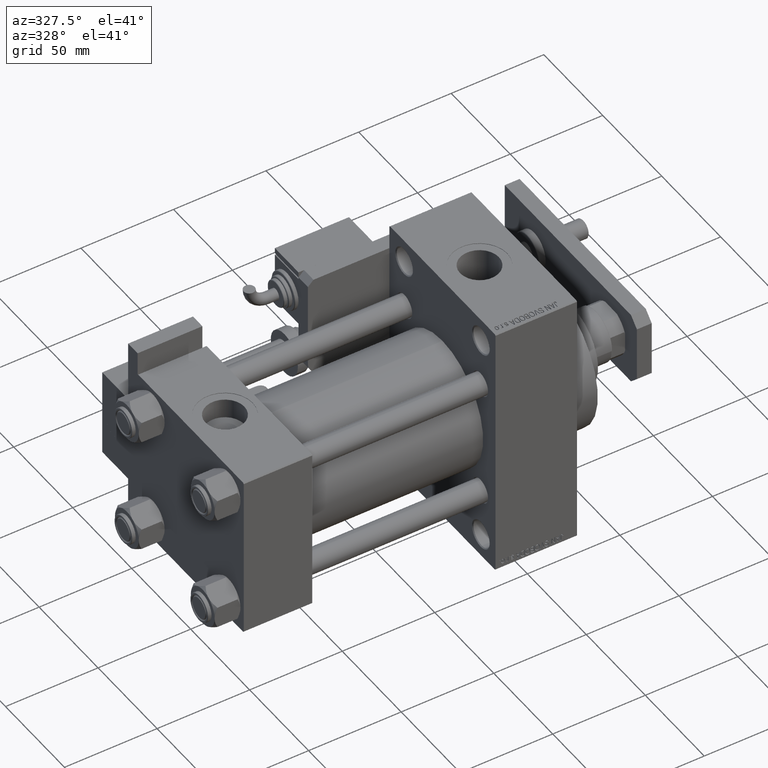
[diagram: clean part render]
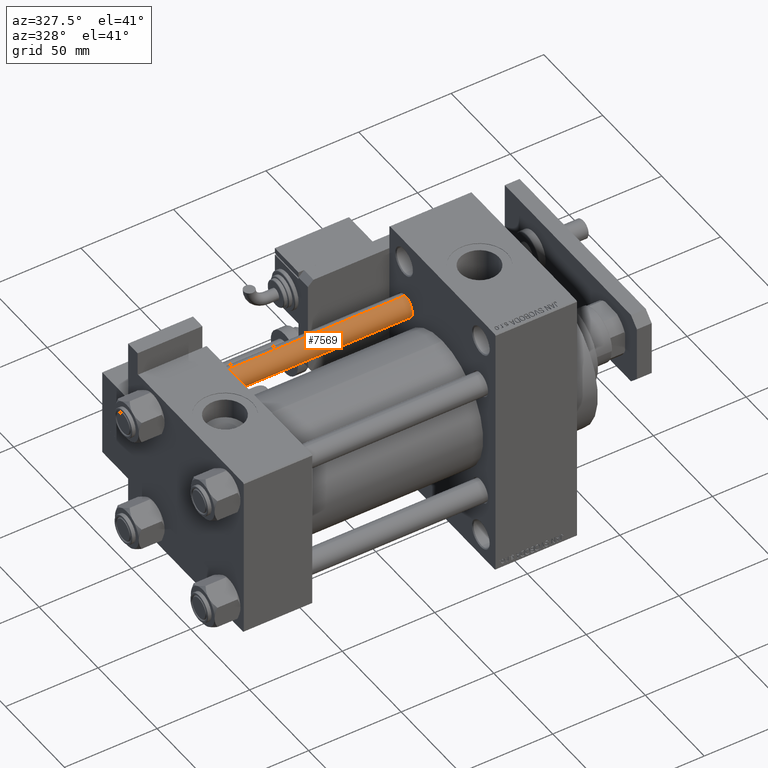
[diagram: same view with one face highlighted and labeled with its STEP entity id]
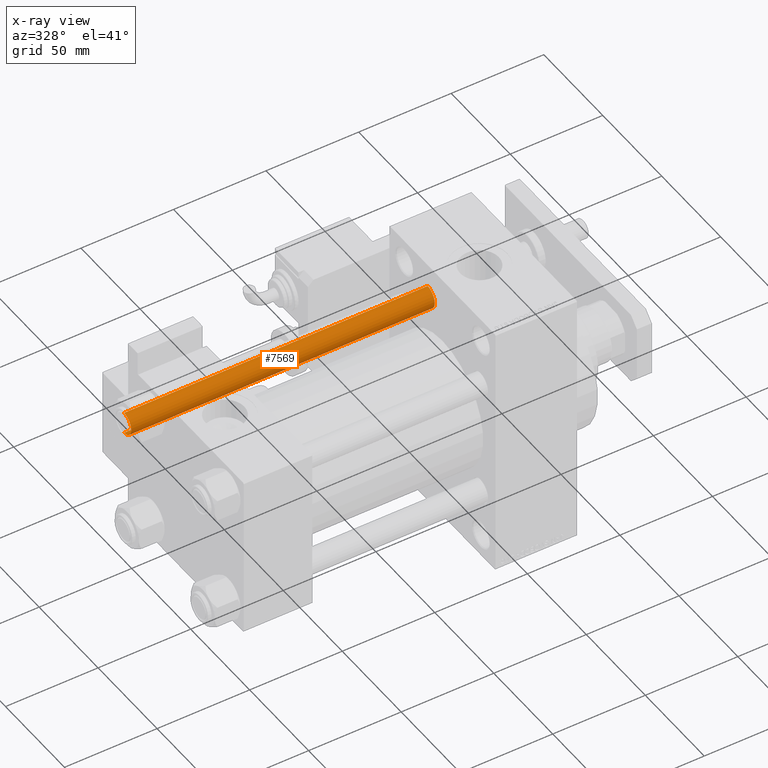
[diagram: x-ray of the same camera — body ghosted, the highlighted face saturated]
A machine part, auxiliary view. The second image highlights one B-rep face of the part: STEP entity #7569.
The next image is the same camera in x-ray: the body ghosted, the highlighted face saturated — about 0% of this face is hidden behind the body in this view.
In plain terms, the highlighted cylindrical surface (edge-blend (fillet) strip) has radius 6 mm, axis along (1, -0, -0).
Its self-contained STEP definition (entity closure, byte-faithful):
#234 = CIRCLE ( 'NONE', #31309, 6.000000000000000888 ) ;
#334 = DIRECTION ( 'NONE',  ( -0.000000000000000000, -0.000000000000000000, -1.000000000000000000 ) ) ;
#1014 = DIRECTION ( 'NONE',  ( 1.000000000000000000, 0.000000000000000000, 0.000000000000000000 ) ) ;
#2038 = ORIENTED_EDGE ( 'NONE', *, *, #25043, .T. ) ;
#2700 = CARTESIAN_POINT ( 'NONE',  ( -6.000000000000000888, 0.000000000000000000, 164.5000000000000000 ) ) ;
#5316 = DIRECTION ( 'NONE',  ( -1.000000000000000000, 0.000000000000000000, 0.000000000000000000 ) ) ;
#6357 = CARTESIAN_POINT ( 'NONE',  ( 0.000000000000000000, 0.000000000000000000, 0.5000000000000281997 ) ) ;
#6943 = ORIENTED_EDGE ( 'NONE', *, *, #15420, .T. ) ;
#7569 = ADVANCED_FACE ( 'NONE', ( #8675 ), #25644, .T. ) ;
#8675 = FACE_OUTER_BOUND ( 'NONE', #44859, .T. ) ;
#9231 = CARTESIAN_POINT ( 'NONE',  ( 0.000000000000000000, 0.000000000000000000, 165.0000000000000000 ) ) ;
#11831 = CARTESIAN_POINT ( 'NONE',  ( 6.000000000000000888, 7.347880794884120722E-16, 165.0000000000000000 ) ) ;
#13182 = LINE ( 'NONE', #54903, #44322 ) ;
#13311 = VECTOR ( 'NONE', #50479, 1000.000000000000000 ) ;
#15420 = EDGE_CURVE ( 'NONE', #18277, #52238, #50327, .T. ) ;
#18277 = VERTEX_POINT ( 'NONE', #45604 ) ;
#18623 = DIRECTION ( 'NONE',  ( -0.000000000000000000, -0.000000000000000000, 1.000000000000000000 ) ) ;
#19235 = VERTEX_POINT ( 'NONE', #2700 ) ;
#19619 = ORIENTED_EDGE ( 'NONE', *, *, #42178, .F. ) ;
#22805 = DIRECTION ( 'NONE',  ( 1.000000000000000000, 0.000000000000000000, 0.000000000000000000 ) ) ;
#23598 = AXIS2_PLACEMENT_3D ( 'NONE', #9231, #334, #5316 ) ;
#25043 = EDGE_CURVE ( 'NONE', #19235, #18277, #13182, .T. ) ;
#25644 = CYLINDRICAL_SURFACE ( 'NONE', #23598, 6.000000000000000888 ) ;
#28222 = ORIENTED_EDGE ( 'NONE', *, *, #47216, .T. ) ;
#29609 = LINE ( 'NONE', #11831, #13311 ) ;
#31309 = AXIS2_PLACEMENT_3D ( 'NONE', #51364, #34118, #1014 ) ;
#34118 = DIRECTION ( 'NONE',  ( 0.000000000000000000, 0.000000000000000000, -1.000000000000000000 ) ) ;
#37780 = CARTESIAN_POINT ( 'NONE',  ( 6.000000000000000888, 7.347880794884120722E-16, 0.5000000000000281997 ) ) ;
#38204 = DIRECTION ( 'NONE',  ( -0.000000000000000000, -0.000000000000000000, -1.000000000000000000 ) ) ;
#41643 = VERTEX_POINT ( 'NONE', #50350 ) ;
#42178 = EDGE_CURVE ( 'NONE', #41643, #52238, #29609, .T. ) ;
#44322 = VECTOR ( 'NONE', #38204, 1000.000000000000000 ) ;
#44859 = EDGE_LOOP ( 'NONE', ( #19619, #28222, #2038, #6943 ) ) ;
#45604 = CARTESIAN_POINT ( 'NONE',  ( -6.000000000000000888, 0.000000000000000000, 0.5000000000000281997 ) ) ;
#47216 = EDGE_CURVE ( 'NONE', #41643, #19235, #234, .T. ) ;
#50327 = CIRCLE ( 'NONE', #54769, 6.000000000000000888 ) ;
#50350 = CARTESIAN_POINT ( 'NONE',  ( 6.000000000000000888, 7.347880794884120722E-16, 164.5000000000000000 ) ) ;
#50479 = DIRECTION ( 'NONE',  ( -0.000000000000000000, -0.000000000000000000, -1.000000000000000000 ) ) ;
#51364 = CARTESIAN_POINT ( 'NONE',  ( 0.000000000000000000, 0.000000000000000000, 164.5000000000000000 ) ) ;
#52238 = VERTEX_POINT ( 'NONE', #37780 ) ;
#54769 = AXIS2_PLACEMENT_3D ( 'NONE', #6357, #18623, #22805 ) ;
#54903 = CARTESIAN_POINT ( 'NONE',  ( -6.000000000000000888, 0.000000000000000000, 165.0000000000000000 ) ) ;